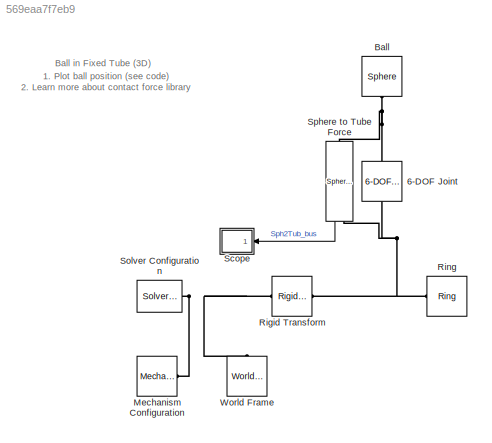
MODEL slx_569eaa7f7eb9
KIND model
CONFIG PreLoadFcn = tube.outer_rad = 2;\ntube.inner_rad = 1.7;\ntube.length = 8;\nball.rad = 1;\n
CONFIG StartFcn = tic;
CONFIG StopFcn = Elapsed_Sim_Time = toc;\ndisp(['Elapsed Sim Time = ' num2str(Elapsed_Sim_Time)]);\n
BLOCK [Reference] 6-DOF Joint  REF=sm_lib/Joints/6-DOF Joint
  BlockFunction = simmechanics.library.joints.sixdof_joint
  ClassName = SixDofJoint
  CompositeWrenchDir = FollowerOnBase
  CompositeWrenchFrame = BaseFrame
  LogSimulationData = off
  Ports = [0, 0, 0, 0, 0, 1, 1]
  PxDampingCoefficient = 0
  PxDampingCoefficientUnits = N/(m/s)
  PxEquilibriumPosition = 0
  PxEquilibriumPositionUnits = m
  PxMotionActuationMode = ComputedMotion
  PxPositionTargetPriority = High
  PxPositionTargetSpecify = off
  PxPositionTargetValue = 0
  PxPositionTargetValueUnits = m
  PxSenseAcceleration = off
  PxSensePosition = off
  PxSenseTorqueForce = off
  PxSenseVelocity = off
  PxSpringStiffness = 0
  PxSpringStiffnessUnits = N/m
  PxTorqueActuationMode = NoTorque
  PxVelocityTargetPriority = High
  PxVelocityTargetSpecify = on
  PxVelocityTargetValue = 0
  PxVelocityTargetValueUnits = m/s
  PyDampingCoefficient = 0
  PyDampingCoefficientUnits = N/(m/s)
  PyEquilibriumPosition = 0
  PyEquilibriumPositionUnits = m
  PyMotionActuationMode = ComputedMotion
  PyPositionTargetPriority = High
  PyPositionTargetSpecify = on
  PyPositionTargetValue = -1
  PyPositionTargetValueUnits = m
  PySenseAcceleration = off
  PySensePosition = off
  PySenseTorqueForce = off
  PySenseVelocity = off
  PySpringStiffness = 0
  PySpringStiffnessUnits = N/m
  PyTorqueActuationMode = NoTorque
  PyVelocityTargetPriority = High
  PyVelocityTargetSpecify = on
  PyVelocityTargetValue = 4
  PyVelocityTargetValueUnits = m/s
  PzDampingCoefficient = 0
  PzDampingCoefficientUnits = N/(m/s)
  PzEquilibriumPosition = 0
  PzEquilibriumPositionUnits = m
  PzMotionActuationMode = ComputedMotion
  PzPositionTargetPriority = High
  PzPositionTargetSpecify = on
  PzPositionTargetValue = 6
  PzPositionTargetValueUnits = m
  PzSenseAcceleration = off
  PzSensePosition = off
  PzSenseTorqueForce = off
  PzSenseVelocity = off
  PzSpringStiffness = 0
  PzSpringStiffnessUnits = N/m
  PzTorqueActuationMode = NoTorque
  PzVelocityTargetPriority = High
  PzVelocityTargetSpecify = on
  PzVelocityTargetValue = -4
  PzVelocityTargetValueUnits = m/s
  SenseConstraintForce = off
  SenseConstraintForceX = off
  SenseConstraintForceY = off
  SenseConstraintForceZ = off
  SenseConstraintTorque = off
  SenseConstraintTorqueX = off
  SenseConstraintTorqueY = off
  SenseConstraintTorqueZ = off
  SenseTotalForce = off
  SenseTotalForceX = off
  SenseTotalForceY = off
  SenseTotalForceZ = off
  SenseTotalTorque = off
  SenseTotalTorqueX = off
  SenseTotalTorqueY = off
  SenseTotalTorqueZ = off
  SourceBlock = sm_lib/Joints/6-DOF Joint
  SourceType = 6-DOF Joint
  SphActuateTorque = off
  SphActuateTorqueX = off
  SphActuateTorqueY = off
  SphActuateTorqueZ = off
  SphActuationFrame = BaseFrame
  SphDampingCoefficient = 0
  SphDampingCoefficientUnits = N*m/(deg/s)
  SphDefPosBaseAlignAxisA = +Y
  SphDefPosBaseAlignAxisB = +Z
  SphDefPosFollAlignAxisA = +X
  SphDefPosFollAlignAxisB = +Y
  SphDefPosRotationAngle = 0.0
  SphDefPosRotationAngleUnits = deg
  SphDefPosRotationArbitraryAxis = [0 0 1]
  SphDefPosRotationMatrix = [1 0 0; 0 1 0; 0 0 1]
  SphDefPosRotationMethod = None
  SphDefPosRotationStandardAxis = +Z
  SphEqPosBaseAlignAxisA = +Y
  SphEqPosBaseAlignAxisB = +Z
  SphEqPosFollAlignAxisA = +X
  SphEqPosFollAlignAxisB = +Y
  SphEqPosRotationAngle = 0.0
  SphEqPosRotationAngleUnits = deg
  SphEqPosRotationArbitraryAxis = [0 0 1]
  SphEqPosRotationMatrix = [1 0 0; 0 1 0; 0 0 1]
  SphEqPosRotationMethod = None
  SphEqPosRotationStandardAxis = +Z
  SphMotionActuationMode = ComputedMotion
  SphPositionTargetBaseAlignAxisA = +Y
  SphPositionTargetBaseAlignAxisB = +Z
  SphPositionTargetFollAlignAxisA = +X
  SphPositionTargetFollAlignAxisB = +Y
  SphPositionTargetPriority = High
  SphPositionTargetRotationAngle = 0.0
  SphPositionTargetRotationAngleUnits = deg
  SphPositionTargetRotationArbitraryAxis = [0 0 1]
  SphPositionTargetRotationMatrix = [1 0 0; 0 1 0; 0 0 1]
  SphPositionTargetRotationMethod = None
  SphPositionTargetRotationStandardAxis = +Z
  SphPositionTargetSpecify = off
  SphSenseAcceleration = off
  SphSenseAccelerationX = off
  SphSenseAccelerationY = off
  SphSenseAccelerationZ = off
  SphSensePosition = off
  SphSenseTorqueForce = off
  SphSenseTorqueX = off
  SphSenseTorqueY = off
  SphSenseTorqueZ = off
  SphSenseVelocity = off
  SphSenseVelocityX = off
  SphSenseVelocityY = off
  SphSenseVelocityZ = off
  SphSensingFrame = BaseFrame
  SphSpringStiffness = 0
  SphSpringStiffnessUnits = N*m/deg
  SphTorqueActuationMode = NoTorque
  SphVelocityTargetInFollowerFrame = on
  SphVelocityTargetPriority = High
  SphVelocityTargetSpecify = on
  SphVelocityTargetValue = [0 0 2]
  SphVelocityTargetValueUnits = rev/s
BLOCK [Reference] Ball  REF=Parts_Lib/Sphere
  Ports = [0, 0, 0, 0, 0, 1]
  SourceBlock = Parts_Lib/Sphere
  SourceType = Sphere with Markings
  Tag = CustomStyle
  arc_angle = 60
  arc_opacity = 0
  arc_width = [40 50]
  mark_color = axes
  mark_opacity = 1
  mark_type = Rings on center planes
  ring_irad = 0.95
  ring_opacity = 0
  ring_width = 5
  sph_color = red
  sph_density = 1000
  sph_opacity = 1
  sph_radius = ball.rad
BLOCK [Reference] Mechanism Configuration  REF=sm_lib/Utilities/Mechanism
Configuration
  BlockFunction = simmechanics.library.utilities.mechanism_configuration
  ClassName = MechanismConfiguration
  GravityUnits = m/s^2
  GravityVector = [0 0 -9.80665]
  LinearizationDelta = 0.001
  LogSimulationData = off
  Ports = [0, 0, 0, 0, 0, 0, 1]
  SourceBlock = sm_lib/Utilities/Mechanism\nConfiguration
  SourceType = Mechanism\nConfiguration
  UniformGravity = Constant
BLOCK [Reference] Rigid Transform  REF=sm_lib/Frames and
Transforms/Rigid
Transform
  BaseAlignAxisA = +Y
  BaseAlignAxisB = +Z
  BlockFunction = simmechanics.library.frames_transforms.rigid_transform
  ClassName = RigidTransform
  FollAlignAxisA = +X
  FollAlignAxisB = +Y
  LogSimulationData = off
  Ports = [0, 0, 0, 0, 0, 1, 1]
  RotationAngle = 90.0
  RotationAngleUnits = deg
  RotationArbitraryAxis = [0 0 1]
  RotationMatrix = [1 0 0; 0 1 0; 0 0 1]
  RotationMethod = StandardAxis
  RotationStandardAxis = +X
  SourceBlock = sm_lib/Frames and\nTransforms/Rigid\nTransform
  SourceType = Rigid\nTransform
  TranslationCartesianOffset = [0 0 0]
  TranslationLengthUnit = m
  TranslationMethod = None
  TranslationROffset = 0
  TranslationROffsetUnits = m
  TranslationStandardAxis = +Z
  TranslationStandardOffset = 0
  TranslationThetaOffset = 0
  TranslationThetaOffsetUnits = deg
  TranslationZOffset = 0
  TranslationZOffsetUnits = m
BLOCK [Reference] Ring  REF=Parts_Lib/Ring
  Ports = [0, 0, 0, 0, 0, 1]
  SourceBlock = Parts_Lib/Ring
  SourceType = Solid Cylinder with Markings
  Tag = CustomStyle
  inner_rad = tube.inner_rad
  mark_angle = 60
  mark_color = purple
  mark_opacity = 0
  mark_radius = [0.95 1.05]
  outer_rad = tube.outer_rad
  ring_color = blue
  ring_density = 1000
  ring_length = tube.length
  ring_opacity = 0.5
  ring_swpang = [0 360]
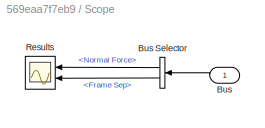
BLOCK [SubSystem] Scope
  Ports = [1]
  RequestExecContextInheritance = off
BLOCK [Inport] Scope/Bus
  IconDisplay = Port number
BLOCK [BusSelector] Scope/Bus Selector
  OutputSignals = Normal Force,Frame Sep
  Ports = [1, 2]
BLOCK [Scope] Scope/Results
  DataFormat = StructureWithTime
  Floating = off
  LimitDataPoints = off
  NumInputPorts = 2
  Ports = [2]
  SaveName = ScopeData1
  ShowLegends = off
  Tag = PublishScope
  YMax = 400000~20
  YMin = 0~-10
  ZoomMode = yonly
BLOCK [Reference] Solver Configuration  REF=nesl_utility/Solver
Configuration
  AbsTol = 1e-06
  Accelerate = off
  AutomaticFiltering = on
  DelaysMemoryBudget = 1024
  DoDC = off
  DoFixedCost = off
  EnableSwitchedLinearOptims = on
  FilteringTimeConstant = 0.001
  FrequencyDomain = off
  Harmonics = []
  LeftPortType = input
  LinearAlgebra = Sparse
  LocalSolverChoice = NE_BACKWARD_EULER_ADVANCER
  LocalSolverSampleTime = 0.001
  MaxModeIter = 2
  MaxNonlinIter = 3
  MinStep = 1e-09
  PhysicalDomain = network_engine_domain
  Ports = [0, 0, 0, 0, 0, 0, 1]
  Profile = off
  RelTol = 0.001
  ResidualTolerance = 1e-09
  RightPortType = generic
  SimulateNoise = off
  SourceBlock = nesl_utility/Solver\nConfiguration
  SourceType = Solver\nConfiguration
  SubClassName = solver
  ToWorkspace = off
  Tones = []
  UseCCode = off
  UseLocalSampling = off
  UseLocalSolver = off
BLOCK [Reference] Sphere to Tube Force  REF=Contact_Forces_Lib/3D/Sphere to Tube Force
  Ports = [0, 1, 0, 0, 0, 1, 1]
  SourceBlock = Contact_Forces_Lib/3D/Sphere to Tube Force
  SourceType = Sphere to Tube Force
  active_angle = [-180 180]
  b_contact = 1e5
  custom_param_1 = 1
  custom_param_2 = 1
  d_tube = (tube.outer_rad-tube.inner_rad)/2
  force_law = Linear
  friction_law = Stick-Slip Continuous
  k_contact = 1e6
  l_tube = tube.length
  mu_kinetic = 0.5
  mu_static = 0.7
  pen_exponent = 1
  pen_full_damp_F = 1e-4
  radius_sphere = ball.rad
  radius_tube = (tube.outer_rad+tube.inner_rad)/2
  v_thr = 0.001
BLOCK [Reference] World Frame  REF=sm_lib/Frames and
Transforms/World Frame
  BlockFunction = simmechanics.library.frames_transforms.world_frame
  ClassName = WorldFrame
  LogSimulationData = off
  Ports = [0, 0, 0, 0, 0, 0, 1]
  SourceBlock = sm_lib/Frames and\nTransforms/World Frame
  SourceType = World Frame
ANNOTATION (root): 1. Plot ball position ( see code ) 2. Learn more about contact force library
ANNOTATION (root): Ball in Fixed Tube (3D)
LINE Scope/Bus Selector:1 -> Scope/Results:1
LINE Scope/Bus Selector:2 -> Scope/Results:2
LINE Scope/Bus:1 -> Scope/Bus Selector:1
LINE Sphere to Tube Force:1 -> Scope:1
PNET net1: 6-DOF Joint:LConn1 -- Rigid Transform:RConn1 -- Ring:LConn1 -- Sphere to Tube Force:RConn1
PNET net2: 6-DOF Joint:RConn1 -- Ball:LConn1 -- Sphere to Tube Force:LConn1
PNET net3: Mechanism Configuration:RConn1 -- Rigid Transform:LConn1 -- Solver Configuration:RConn1 -- World Frame:RConn1
note: PNET lines group multi-terminal physical nets as a canonical sorted terminal list (undirected conserving connections); 2-terminal nets keep the pairwise PLINE form
